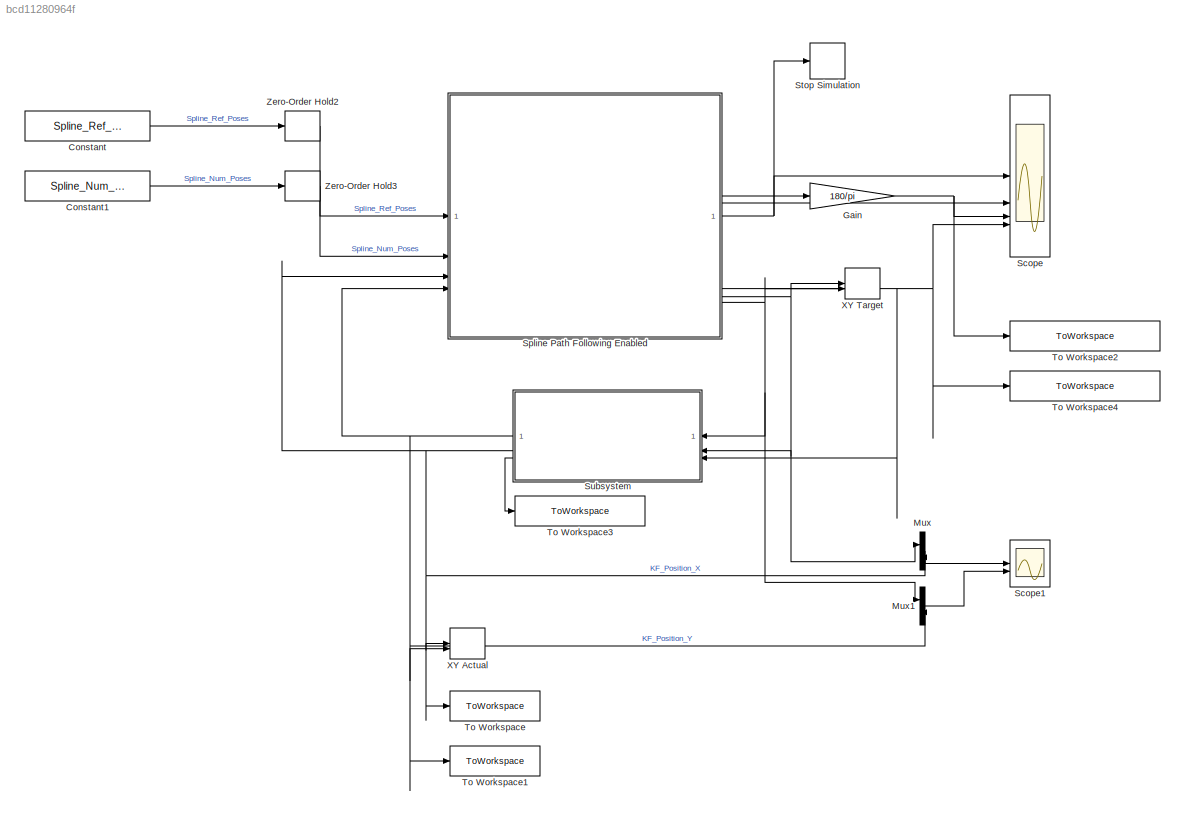
MODEL slx_bcd11280964f
KIND model
CONFIG AbsTol = auto
CONFIG EnableMultiTasking = off
CONFIG FixedStep = auto
CONFIG MaxStep = 0.02
CONFIG MinStep = auto
CONFIG RelTol = 1e-3
CONFIG SampleTimeConstraint = Unconstrained
CONFIG SolverName = VariableStepDiscrete
CONFIG StartTime = 0.0
CONFIG StopTime = 20
BLOCK [Constant] Constant
  Value = Spline_Ref_Poses
BLOCK [Constant] Constant1
  Value = Spline_Num_Poses
BLOCK [Gain] Gain
  Gain = 180/pi
BLOCK [Mux] Mux
  DisplayOption = bar
  Inputs = 2
BLOCK [Mux] Mux1
  DisplayOption = bar
  Inputs = 2
BLOCK [Scope] Scope
  Floating = off
  NumInputPorts = 4
  ScopeSpecificationString = Simulink.scopes.TimeScopeBlockCfg('CurrentConfiguration', extmgr.ConfigurationSet(extmgr.Configuration('Core','General UI',true),extmgr.Configuration('Core','Source UI',true),extmgr.Configuration('Sources','WiredSimulink',true),extmgr.Configuration('Visuals','Time Domain',true,'SerializedDisplays',{struct('MinYLimReal','-0.125','MaxYLimReal','1.125','YLabelReal','','MinYLimMag','0.00000','MaxYLimM...<+3480ch>
BLOCK [Scope] Scope1
  Floating = off
  NumInputPorts = 2
  ScopeSpecificationString = Simulink.scopes.TimeScopeBlockCfg('CurrentConfiguration', extmgr.ConfigurationSet(extmgr.Configuration('Core','General UI',true),extmgr.Configuration('Core','Source UI',true),extmgr.Configuration('Sources','WiredSimulink',true,'DataLoggingVariableName','ScopeData1'),extmgr.Configuration('Visuals','Time Domain',true,'SerializedDisplays',{struct('MinYLimReal','5.14975','MaxYLimReal','7.83225','YLabe...<+2164ch>
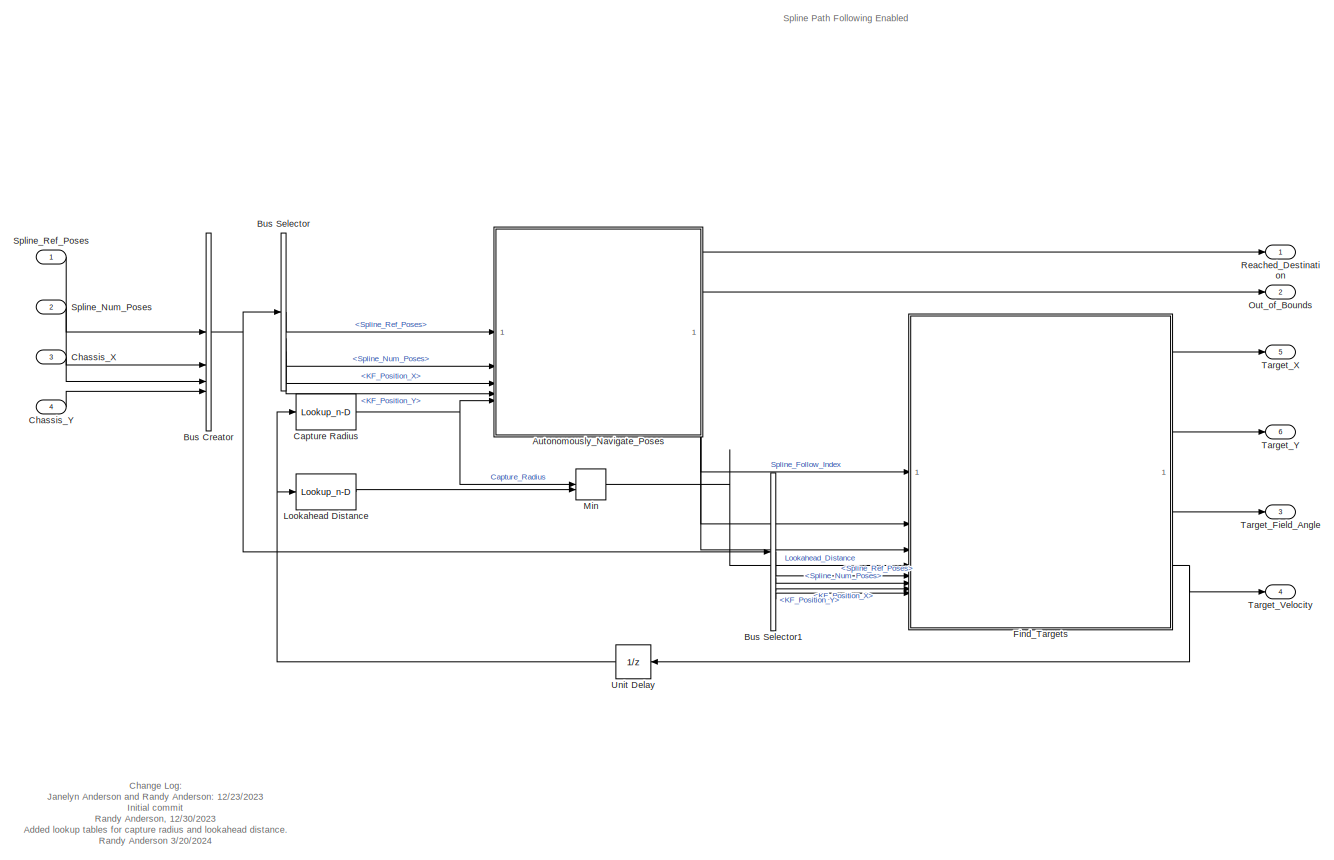
[diagram: Spline Path Following Enabled - part 1/1, most of the canvas]
BLOCK [SubSystem] Spline Path Following Enabled
BLOCK [SubSystem] Spline Path Following Enabled/Autonomously_Navigate_Poses
  ReferencedSubsystem = Autonomously_Navigate_Poses
BLOCK [BusCreator] Spline Path Following Enabled/Bus Creator
  DisplayOption = bar
  InheritFromInputs = on
  Inputs = 4
BLOCK [BusSelector] Spline Path Following Enabled/Bus Selector
  OutputSignals = Spline_Ref_Poses,Spline_Num_Poses,KF_Position_X,KF_Position_Y
BLOCK [BusSelector] Spline Path Following Enabled/Bus Selector1
  OutputSignals = Spline_Ref_Poses,Spline_Num_Poses,KF_Position_X,KF_Position_Y
BLOCK [Lookup_n-D] Spline Path Following Enabled/Capture Radius
  BreakpointsForDimension1 = Spline_Velocity_Axis
  ExtrapMethod = Clip
  InputPortMap = u0
  InternalRulePriority = Speed
  NumberOfTableDimensions = 1
  RndMeth = Simplest
  Table = Spline_Capture_Radius
BLOCK [Inport] Spline Path Following Enabled/Chassis_X
  Port = 3
BLOCK [Inport] Spline Path Following Enabled/Chassis_Y
  Port = 4
BLOCK [SubSystem] Spline Path Following Enabled/Find_Targets
  ReferencedSubsystem = Find_Target_Position_Velocity_Heading
BLOCK [Lookup_n-D] Spline Path Following Enabled/Lookahead Distance
  BreakpointsForDimension1 = Spline_Velocity_Axis
  ExtrapMethod = Clip
  InputPortMap = u0
  InternalRulePriority = Speed
  NumberOfTableDimensions = 1
  RndMeth = Simplest
  Table = Spline_Lookahead_Dist
BLOCK [MinMax] Spline Path Following Enabled/Min
  Inputs = 2
BLOCK [Outport] Spline Path Following Enabled/Out_of_Bounds
  Port = 2
BLOCK [Outport] Spline Path Following Enabled/Reached_Destination
BLOCK [Inport] Spline Path Following Enabled/Spline_Num_Poses
  Port = 2
BLOCK [Inport] Spline Path Following Enabled/Spline_Ref_Poses
BLOCK [Outport] Spline Path Following Enabled/Target_Field_Angle
  Port = 3
BLOCK [Outport] Spline Path Following Enabled/Target_Velocity
  Port = 4
BLOCK [Outport] Spline Path Following Enabled/Target_X
  Port = 5
BLOCK [Outport] Spline Path Following Enabled/Target_Y
  Port = 6
BLOCK [UnitDelay] Spline Path Following Enabled/Unit Delay
  HasFrameUpgradeWarning = on
  SampleTime = -1
BLOCK [Stop] Stop Simulation
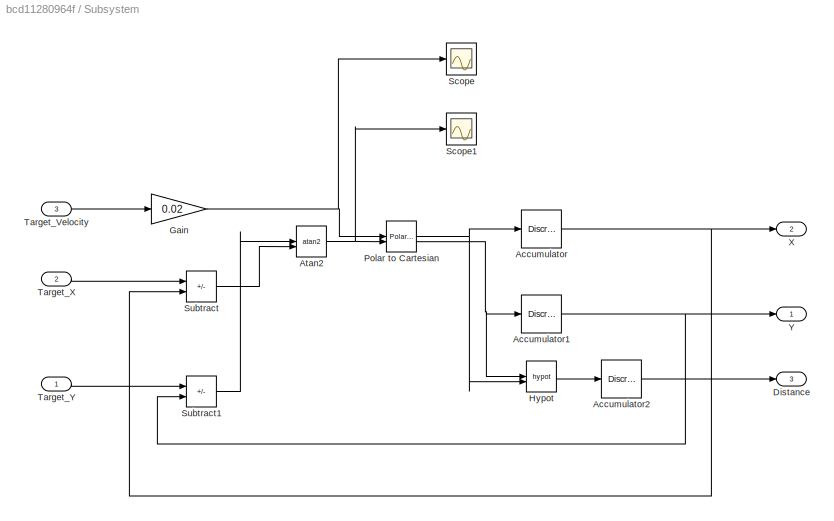
BLOCK [SubSystem] Subsystem
BLOCK [DiscreteIntegrator] Subsystem/Accumulator
  ICPrevOutput = DiscIntNeverNeededParam
  ICPrevScaledInput = DiscIntNeverNeededParam
  InitialCondition = sim_IC_x
  InitialConditionSetting = Auto
  IntegratorMethod = Accumulation: Forward Euler
  SampleTime = -1
BLOCK [DiscreteIntegrator] Subsystem/Accumulator1
  ICPrevOutput = DiscIntNeverNeededParam
  ICPrevScaledInput = DiscIntNeverNeededParam
  InitialCondition = sim_IC_y
  InitialConditionSetting = Auto
  IntegratorMethod = Accumulation: Forward Euler
  SampleTime = -1
BLOCK [DiscreteIntegrator] Subsystem/Accumulator2
  ICPrevOutput = DiscIntNeverNeededParam
  ICPrevScaledInput = DiscIntNeverNeededParam
  InitialConditionSetting = Auto
  IntegratorMethod = Accumulation: Forward Euler
  SampleTime = -1
BLOCK [Trigonometry] Subsystem/Atan2
  Operator = atan2
BLOCK [Outport] Subsystem/Distance
  Port = 3
BLOCK [Gain] Subsystem/Gain
  Gain = 0.02
BLOCK [Math] Subsystem/Hypot
  Operator = hypot
BLOCK [Reference] Subsystem/Polar to Cartesian  REF=simulink_extras/Transformations/Polar to
Cartesian
  SourceBlock = simulink_extras/Transformations/Polar to\nCartesian
  SourceType = Polar2Cart
BLOCK [Scope] Subsystem/Scope
  Floating = off
  NumInputPorts = 1
  ScopeSpecificationString = Simulink.scopes.TimeScopeBlockCfg('CurrentConfiguration', extmgr.ConfigurationSet(extmgr.Configuration('Core','General UI',true),extmgr.Configuration('Core','Source UI',true),extmgr.Configuration('Sources','WiredSimulink',true,'DataLoggingVariableName','ScopeData1'),extmgr.Configuration('Visuals','Time Domain',true,'SerializedDisplays',{struct('MinYLimReal','0.00097','MaxYLimReal','0.02211','YLabe...<+1361ch>
BLOCK [Scope] Subsystem/Scope1
  Floating = off
  NumInputPorts = 1
  ScopeSpecificationString = Simulink.scopes.TimeScopeBlockCfg('CurrentConfiguration', extmgr.ConfigurationSet(extmgr.Configuration('Core','General UI',true),extmgr.Configuration('Core','Source UI',true),extmgr.Configuration('Sources','WiredSimulink',true,'DataLoggingVariableName','ScopeData2'),extmgr.Configuration('Visuals','Time Domain',true),extmgr.Configuration('Tools','Plot Navigation',true),extmgr.Configuration('Tools',...<+40ch>
BLOCK [Sum] Subsystem/Subtract
  IconShape = rectangular
  Inputs = +-
BLOCK [Sum] Subsystem/Subtract1
  IconShape = rectangular
  Inputs = +-
BLOCK [Inport] Subsystem/Target_Velocity
  Port = 3
BLOCK [Inport] Subsystem/Target_X
  Port = 2
BLOCK [Inport] Subsystem/Target_Y
BLOCK [Outport] Subsystem/X
  Port = 2
BLOCK [Outport] Subsystem/Y
BLOCK [ToWorkspace] To Workspace
  FixptAsFi = on
  MaxDataPoints = inf
  SampleTime = 0.02
  Save2DSignal = 2-D array (concatenate along first dimension)
  SaveFormat = Structure With Time
  VariableName = Sim_X
BLOCK [ToWorkspace] To Workspace1
  FixptAsFi = on
  MaxDataPoints = inf
  SampleTime = 0.02
  Save2DSignal = 2-D array (concatenate along first dimension)
  SaveFormat = Structure With Time
  VariableName = Sim_Y
BLOCK [ToWorkspace] To Workspace2
  FixptAsFi = on
  MaxDataPoints = inf
  SampleTime = 0.02
  Save2DSignal = 2-D array (concatenate along first dimension)
  SaveFormat = Structure With Time
  VariableName = Sim_Field_Angle
BLOCK [ToWorkspace] To Workspace3
  FixptAsFi = on
  MaxDataPoints = inf
  SampleTime = 0.02
  Save2DSignal = 2-D array (concatenate along first dimension)
  SaveFormat = Structure With Time
  VariableName = Sim_Distance
BLOCK [ToWorkspace] To Workspace4
  FixptAsFi = on
  MaxDataPoints = inf
  SampleTime = 0.02
  Save2DSignal = 2-D array (concatenate along first dimension)
  SaveFormat = Structure With Time
  VariableName = Sim_Velocity
BLOCK [Record] XY Actual
  CompatibilityTag = XY
  FileSettingsInternal = {"entries":[{"content":{"excelSettings":{"content":{},"type":"Streamout.ExcelSettings"}},"type":"Streamout.FileSettingStorage","uuid":""}],"packageUris":["http:\/\/schema.mathworks.com\/mf0\/streamout_blocks\/R2020a"],"version":"1.0"}
  Layout = [1 1]
  SignalsInternal = {"entries":[{"content":{"signals":[{"content":{"blockPath":[],"dimensions":[1],"domain":"","lineColor":"#0072bd","plots":[1],"port":1,"sid":[""],"signalID":10166,"signalName":"KF_Position_X"},"type":"RecordBlkView.Signal","uuid":""},{"content":{"blockPath":[],"dimensions":[1],"domain":"","lineColor":"#d95319","plots":[1],"port":2,"sid":[""],"signalID":10170,"signalName":"KF_Position_Y"},"type":"Re...<+176ch>
  VisualizationBindings = {"xyplotplugin":{"info":[{"series":[{"bindingParametersList":[{"parameter":"X-Axis","signalID":10166,"signalName":"KF_Position_X"},{"parameter":"Y-Axis","signalID":10170,"signalName":"KF_Position_Y"}],"seriesID":21168}],"subplotID":1}]}}
BLOCK [Record] XY Target
  CompatibilityTag = XY
  FileSettingsInternal = {"entries":[{"content":{"excelSettings":{"content":{},"type":"Streamout.ExcelSettings"}},"type":"Streamout.FileSettingStorage","uuid":""}],"packageUris":["http:\/\/schema.mathworks.com\/mf0\/streamout_blocks\/R2020a"],"version":"1.0"}
  Layout = [1 1]
  SignalsInternal = {"entries":[{"content":{"signals":[{"content":{"blockPath":[],"dimensions":[1,1],"domain":"","lineColor":"#edb120","plots":[1],"port":1,"sid":[""],"signalID":10174,"signalName":"Spline Path Following Enabled:5"},"type":"RecordBlkView.Signal","uuid":""},{"content":{"blockPath":[],"dimensions":[1,1],"domain":"","lineColor":"#7e2f8e","plots":[1],"port":2,"sid":[""],"signalID":10178,"signalName":"Spli...<+216ch>
  VisualizationBindings = {"xyplotplugin":{"info":[{"series":[{"bindingParametersList":[{"parameter":"X-Axis","signalID":10174,"signalName":"Spline Path Following Enabled:5"},{"parameter":"Y-Axis","signalID":10178,"signalName":"Spline Path Following Enabled:6"}],"seriesID":49111}],"subplotID":1}]}}
BLOCK [ZeroOrderHold] Zero-Order Hold2
  SampleTime = 0.02
BLOCK [ZeroOrderHold] Zero-Order Hold3
  SampleTime = 0.02
ANNOTATION Spline Path Following Enabled: Change Log: Janelyn Anderson and Randy Anderson: 12/23/2023 Initial commit Randy Anderson, 12/30/2023 Added lookup tables for capture radius and lookahead distance. Randy Anderson 3/20/2024 Added Gyro_Angle_Field_rad as an input/output
ANNOTATION Spline Path Following Enabled: Spline Path Following Enabled
LINE Constant1:1 -> Zero-Order Hold3:1
LINE Constant:1 -> Zero-Order Hold2:1
NET Gain:1 -> Scope:3, To Workspace2:1
LINE Mux1:1 -> Scope1:2
LINE Mux:1 -> Scope1:1
LINE Spline Path Following Enabled/Autonomously_Navigate_Poses:1 -> Spline Path Following Enabled/Reached_Destination:1
LINE Spline Path Following Enabled/Autonomously_Navigate_Poses:2 -> Spline Path Following Enabled/Out_of_Bounds:1
LINE Spline Path Following Enabled/Autonomously_Navigate_Poses:3 -> Spline Path Following Enabled/Find_Targets:1
LINE Spline Path Following Enabled/Autonomously_Navigate_Poses:4 -> Spline Path Following Enabled/Find_Targets:2
LINE Spline Path Following Enabled/Autonomously_Navigate_Poses:5 -> Spline Path Following Enabled/Find_Targets:3
NET Spline Path Following Enabled/Bus Creator:1 -> Spline Path Following Enabled/Bus Selector1:1, Spline Path Following Enabled/Bus Selector:1
LINE Spline Path Following Enabled/Bus Selector1:1 -> Spline Path Following Enabled/Find_Targets:5
LINE Spline Path Following Enabled/Bus Selector1:2 -> Spline Path Following Enabled/Find_Targets:6
LINE Spline Path Following Enabled/Bus Selector1:3 -> Spline Path Following Enabled/Find_Targets:7
LINE Spline Path Following Enabled/Bus Selector1:4 -> Spline Path Following Enabled/Find_Targets:8
LINE Spline Path Following Enabled/Bus Selector:1 -> Spline Path Following Enabled/Autonomously_Navigate_Poses:1
LINE Spline Path Following Enabled/Bus Selector:2 -> Spline Path Following Enabled/Autonomously_Navigate_Poses:2
LINE Spline Path Following Enabled/Bus Selector:3 -> Spline Path Following Enabled/Autonomously_Navigate_Poses:3
LINE Spline Path Following Enabled/Bus Selector:4 -> Spline Path Following Enabled/Autonomously_Navigate_Poses:4
NET Spline Path Following Enabled/Capture Radius:1 -> Spline Path Following Enabled/Autonomously_Navigate_Poses:5, Spline Path Following Enabled/Min:1
LINE Spline Path Following Enabled/Chassis_X:1 -> Spline Path Following Enabled/Bus Creator:3
LINE Spline Path Following Enabled/Chassis_Y:1 -> Spline Path Following Enabled/Bus Creator:4
LINE Spline Path Following Enabled/Find_Targets:1 -> Spline Path Following Enabled/Target_X:1
LINE Spline Path Following Enabled/Find_Targets:2 -> Spline Path Following Enabled/Target_Y:1
LINE Spline Path Following Enabled/Find_Targets:3 -> Spline Path Following Enabled/Target_Field_Angle:1
NET Spline Path Following Enabled/Find_Targets:4 -> Spline Path Following Enabled/Target_Velocity:1, Spline Path Following Enabled/Unit Delay:1
LINE Spline Path Following Enabled/Lookahead Distance:1 -> Spline Path Following Enabled/Min:2
LINE Spline Path Following Enabled/Min:1 -> Spline Path Following Enabled/Find_Targets:4
LINE Spline Path Following Enabled/Spline_Num_Poses:1 -> Spline Path Following Enabled/Bus Creator:2
LINE Spline Path Following Enabled/Spline_Ref_Poses:1 -> Spline Path Following Enabled/Bus Creator:1
NET Spline Path Following Enabled/Unit Delay:1 -> Spline Path Following Enabled/Capture Radius:1, Spline Path Following Enabled/Lookahead Distance:1
NET Spline Path Following Enabled:1 -> Scope:1, Stop Simulation:1
LINE Spline Path Following Enabled:2 -> Scope:2
LINE Spline Path Following Enabled:3 -> Gain:1
NET Spline Path Following Enabled:4 -> Scope:4, Subsystem:3, To Workspace4:1
NET Spline Path Following Enabled:5 -> Mux:1, Subsystem:2, XY Target:1
NET Spline Path Following Enabled:6 -> Mux1:1, Subsystem:1, XY Target:2
NET Subsystem/Accumulator1:1 -> Subsystem/Subtract1:2, Subsystem/Y:1
LINE Subsystem/Accumulator2:1 -> Subsystem/Distance:1
NET Subsystem/Accumulator:1 -> Subsystem/Subtract:2, Subsystem/X:1
NET Subsystem/Atan2:1 -> Subsystem/Polar to Cartesian:2, Subsystem/Scope1:1
NET Subsystem/Gain:1 -> Subsystem/Polar to Cartesian:1, Subsystem/Scope:1
LINE Subsystem/Hypot:1 -> Subsystem/Accumulator2:1
NET Subsystem/Polar to Cartesian:1 -> Subsystem/Accumulator:1, Subsystem/Hypot:2
NET Subsystem/Polar to Cartesian:2 -> Subsystem/Accumulator1:1, Subsystem/Hypot:1
LINE Subsystem/Subtract1:1 -> Subsystem/Atan2:1
LINE Subsystem/Subtract:1 -> Subsystem/Atan2:2
LINE Subsystem/Target_Velocity:1 -> Subsystem/Gain:1
LINE Subsystem/Target_X:1 -> Subsystem/Subtract:1
LINE Subsystem/Target_Y:1 -> Subsystem/Subtract1:1
NET Subsystem:1 -> Mux1:2, Spline Path Following Enabled:4, To Workspace1:1, XY Actual:2
NET Subsystem:2 -> Mux:2, Spline Path Following Enabled:3, To Workspace:1, XY Actual:1
LINE Subsystem:3 -> To Workspace3:1
LINE Zero-Order Hold2:1 -> Spline Path Following Enabled:1
LINE Zero-Order Hold3:1 -> Spline Path Following Enabled:2
note: NET lines group one-source signal fan-out (src -> all destinations, sorted); 1:1 wires keep LINE
